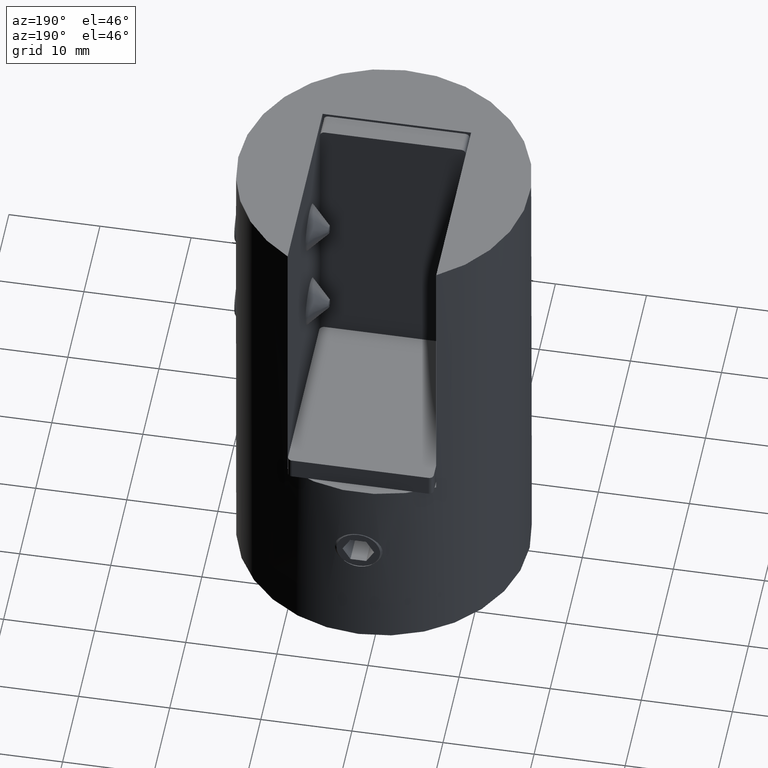
[diagram: clean part render]
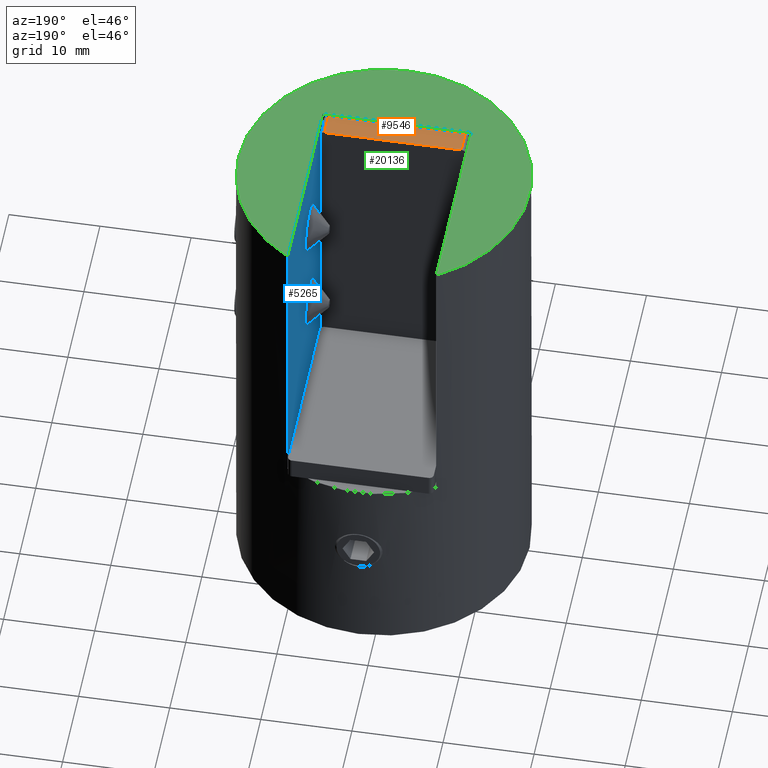
[diagram: same view with three faces highlighted in distinct colors, each labeled with its STEP entity id]
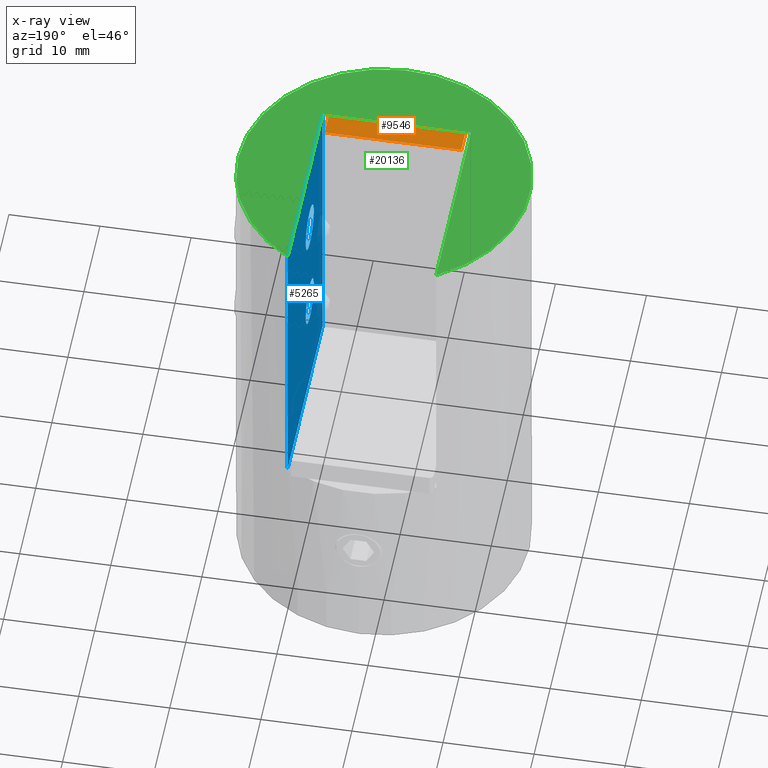
[diagram: x-ray of the same camera — body ghosted, the three highlighted faces saturated]
A machine part, auxiliary view with three faces highlighted in distinct colors.
The next image is the same camera in x-ray (body ghosted, the three faces saturated) — at least one of them is partly hidden behind the body in this view.
Their STEP definitions:

[orange] entity #9546 — the highlighted planar face has unit normal (0, 0, 1).
#1801 = CARTESIAN_POINT ( 'NONE',  ( -16.19999999999999929, 2.450000000000000178, 7.499999999999996447 ) ) ;
#2068 = VERTEX_POINT ( 'NONE', #7767 ) ;
#2683 = ORIENTED_EDGE ( 'NONE', *, *, #7994, .F. ) ;
#2941 = DIRECTION ( 'NONE',  ( -0.000000000000000000, -1.000000000000000000, -0.000000000000000000 ) ) ;
#3038 = LINE ( 'NONE', #17101, #19314 ) ;
#3526 = DIRECTION ( 'NONE',  ( 0.000000000000000000, 0.000000000000000000, -1.000000000000000000 ) ) ;
#3953 = CARTESIAN_POINT ( 'NONE',  ( -16.19999999999999929, 0.000000000000000000, -7.499999999999996447 ) ) ;
#5168 = ORIENTED_EDGE ( 'NONE', *, *, #5782, .T. ) ;
#5500 = LINE ( 'NONE', #12010, #9459 ) ;
#5578 = ORIENTED_EDGE ( 'NONE', *, *, #15117, .T. ) ;
#5782 = EDGE_CURVE ( 'NONE', #13147, #6051, #18416, .T. ) ;
#6051 = VERTEX_POINT ( 'NONE', #3953 ) ;
#6263 = AXIS2_PLACEMENT_3D ( 'NONE', #13954, #20074, #20002 ) ;
#7567 = PLANE ( 'NONE',  #6263 ) ;
#7767 = CARTESIAN_POINT ( 'NONE',  ( -16.19999999999999929, 0.000000000000000000, 7.499999999999996447 ) ) ;
#7994 = EDGE_CURVE ( 'NONE', #8850, #2068, #3038, .T. ) ;
#8025 = LINE ( 'NONE', #1801, #9504 ) ;
#8125 = CARTESIAN_POINT ( 'NONE',  ( -16.19999999999999929, 2.450000000000000178, 7.499999999999996447 ) ) ;
#8764 = CARTESIAN_POINT ( 'NONE',  ( -16.19999999999999929, 2.450000000000000178, -7.499999999999996447 ) ) ;
#8850 = VERTEX_POINT ( 'NONE', #8125 ) ;
#9459 = VECTOR ( 'NONE', #11945, 1000.000000000000000 ) ;
#9504 = VECTOR ( 'NONE', #3526, 1000.000000000000000 ) ;
#9546 = ADVANCED_FACE ( 'NONE', ( #12378 ), #7567, .T. ) ;
#9586 = EDGE_LOOP ( 'NONE', ( #9898, #2683, #5578, #5168 ) ) ;
#9898 = ORIENTED_EDGE ( 'NONE', *, *, #17528, .F. ) ;
#11945 = DIRECTION ( 'NONE',  ( 0.000000000000000000, 0.000000000000000000, -1.000000000000000000 ) ) ;
#12010 = CARTESIAN_POINT ( 'NONE',  ( -16.19999999999999929, 0.000000000000000000, 7.499999999999996447 ) ) ;
#12378 = FACE_OUTER_BOUND ( 'NONE', #9586, .T. ) ;
#12617 = CARTESIAN_POINT ( 'NONE',  ( -16.19999999999999929, 2.450000000000000178, -7.499999999999996447 ) ) ;
#13147 = VERTEX_POINT ( 'NONE', #12617 ) ;
#13713 = VECTOR ( 'NONE', #15169, 1000.000000000000000 ) ;
#13954 = CARTESIAN_POINT ( 'NONE',  ( -16.19999999999999929, 2.450000000000000178, 7.499999999999996447 ) ) ;
#15117 = EDGE_CURVE ( 'NONE', #8850, #13147, #8025, .T. ) ;
#15169 = DIRECTION ( 'NONE',  ( -0.000000000000000000, -1.000000000000000000, -0.000000000000000000 ) ) ;
#17101 = CARTESIAN_POINT ( 'NONE',  ( -16.19999999999999929, 2.450000000000000178, 7.499999999999996447 ) ) ;
#17528 = EDGE_CURVE ( 'NONE', #2068, #6051, #5500, .T. ) ;
#18416 = LINE ( 'NONE', #8764, #13713 ) ;
#19314 = VECTOR ( 'NONE', #2941, 1000.000000000000000 ) ;
#20002 = DIRECTION ( 'NONE',  ( 0.000000000000000000, 0.000000000000000000, 1.000000000000000000 ) ) ;
#20074 = DIRECTION ( 'NONE',  ( -1.000000000000000000, 0.000000000000000000, 0.000000000000000000 ) ) ;

[blue] entity #5265 — the highlighted planar face has unit normal (1, 0, -0).
#23 = ORIENTED_EDGE ( 'NONE', *, *, #13697, .F. ) ;
#1382 = VECTOR ( 'NONE', #18690, 1000.000000000000000 ) ;
#1427 = CARTESIAN_POINT ( 'NONE',  ( 8.150000000000000355, -8.000000000000000000, -33.00000000000000000 ) ) ;
#1485 = CARTESIAN_POINT ( 'NONE',  ( 8.150000000000005684, 0.000000000000000000, -9.500000000000014211 ) ) ;
#1652 = AXIS2_PLACEMENT_3D ( 'NONE', #1485, #17091, #7871 ) ;
#2095 = CARTESIAN_POINT ( 'NONE',  ( 8.150000000000002132, -7.703719777548943412E-31, -18.50000000000002842 ) ) ;
#2819 = AXIS2_PLACEMENT_3D ( 'NONE', #3679, #8548, #19403 ) ;
#3348 = EDGE_LOOP ( 'NONE', ( #23 ) ) ;
#3679 = CARTESIAN_POINT ( 'NONE',  ( 8.150000000000002132, -7.703719777548943412E-31, -21.00000000000001421 ) ) ;
#3826 = ORIENTED_EDGE ( 'NONE', *, *, #4732, .F. ) ;
#4013 = EDGE_CURVE ( 'NONE', #14952, #8044, #8105, .T. ) ;
#4065 = CARTESIAN_POINT ( 'NONE',  ( 8.150000000000000355, -8.000000000000000000, -33.00000000000000000 ) ) ;
#4580 = CIRCLE ( 'NONE', #1652, 2.499999999999988454 ) ;
#4732 = EDGE_CURVE ( 'NONE', #8886, #16869, #14982, .T. ) ;
#4879 = CARTESIAN_POINT ( 'NONE',  ( 8.150000000000011013, -8.000000000000000000, -1.387778780781445676E-14 ) ) ;
#5265 = ADVANCED_FACE ( 'NONE', ( #11737, #7565, #12497 ), #11923, .F. ) ;
#5437 = CARTESIAN_POINT ( 'NONE',  ( 8.150000000000005684, 0.000000000000000000, -7.000000000000024869 ) ) ;
#6008 = DIRECTION ( 'NONE',  ( -0.000000000000000000, -0.000000000000000000, -1.000000000000000000 ) ) ;
#6459 = ORIENTED_EDGE ( 'NONE', *, *, #13523, .F. ) ;
#6716 = EDGE_LOOP ( 'NONE', ( #6459 ) ) ;
#7565 = FACE_BOUND ( 'NONE', #3348, .T. ) ;
#7812 = CIRCLE ( 'NONE', #2819, 2.499999999999988454 ) ;
#7871 = DIRECTION ( 'NONE',  ( 0.000000000000000000, 0.000000000000000000, 1.000000000000000000 ) ) ;
#8044 = VERTEX_POINT ( 'NONE', #18676 ) ;
#8104 = VECTOR ( 'NONE', #9317, 1000.000000000000000 ) ;
#8105 = LINE ( 'NONE', #15453, #12019 ) ;
#8285 = EDGE_CURVE ( 'NONE', #8886, #14952, #20041, .T. ) ;
#8548 = DIRECTION ( 'NONE',  ( -1.000000000000000000, -0.000000000000000000, 3.304235192336775512E-16 ) ) ;
#8886 = VERTEX_POINT ( 'NONE', #4879 ) ;
#9205 = VECTOR ( 'NONE', #16257, 1000.000000000000000 ) ;
#9317 = DIRECTION ( 'NONE',  ( -0.000000000000000000, 1.000000000000000000, -0.000000000000000000 ) ) ;
#9626 = ORIENTED_EDGE ( 'NONE', *, *, #8285, .T. ) ;
#9738 = EDGE_LOOP ( 'NONE', ( #20082, #15212, #3826, #9626 ) ) ;
#11150 = VERTEX_POINT ( 'NONE', #2095 ) ;
#11737 = FACE_BOUND ( 'NONE', #6716, .T. ) ;
#11923 = PLANE ( 'NONE',  #19278 ) ;
#12019 = VECTOR ( 'NONE', #6008, 1000.000000000000000 ) ;
#12266 = LINE ( 'NONE', #1427, #8104 ) ;
#12278 = CARTESIAN_POINT ( 'NONE',  ( 8.150000000000000355, -8.000000000000000000, -33.00000000000000000 ) ) ;
#12497 = FACE_OUTER_BOUND ( 'NONE', #9738, .T. ) ;
#13523 = EDGE_CURVE ( 'NONE', #18791, #18791, #4580, .T. ) ;
#13697 = EDGE_CURVE ( 'NONE', #11150, #11150, #7812, .T. ) ;
#14384 = CARTESIAN_POINT ( 'NONE',  ( 8.150000000000000355, -8.000000000000000000, -33.00000000000000000 ) ) ;
#14952 = VERTEX_POINT ( 'NONE', #19046 ) ;
#14982 = LINE ( 'NONE', #12278, #1382 ) ;
#15107 = DIRECTION ( 'NONE',  ( -3.304235192336775512E-16, 0.000000000000000000, -1.000000000000000000 ) ) ;
#15212 = ORIENTED_EDGE ( 'NONE', *, *, #18739, .F. ) ;
#15453 = CARTESIAN_POINT ( 'NONE',  ( 8.149999999999995026, 13.76871453694933933, -50.00000000000000000 ) ) ;
#16257 = DIRECTION ( 'NONE',  ( -0.000000000000000000, 1.000000000000000000, 0.000000000000000000 ) ) ;
#16869 = VERTEX_POINT ( 'NONE', #14384 ) ;
#17091 = DIRECTION ( 'NONE',  ( -1.000000000000000000, -0.000000000000000000, 3.304235192336775512E-16 ) ) ;
#18273 = DIRECTION ( 'NONE',  ( 1.000000000000000000, 0.000000000000000000, -3.304235192336775512E-16 ) ) ;
#18676 = CARTESIAN_POINT ( 'NONE',  ( 8.150000000000000355, 13.76871453694934111, -33.00000000000000000 ) ) ;
#18690 = DIRECTION ( 'NONE',  ( -3.304235192336775512E-16, -0.000000000000000000, -1.000000000000000000 ) ) ;
#18739 = EDGE_CURVE ( 'NONE', #16869, #8044, #12266, .T. ) ;
#18791 = VERTEX_POINT ( 'NONE', #5437 ) ;
#19046 = CARTESIAN_POINT ( 'NONE',  ( 8.150000000000011013, 13.76871453694933045, 0.000000000000000000 ) ) ;
#19081 = CARTESIAN_POINT ( 'NONE',  ( 8.150000000000011013, 0.000000000000000000, 0.000000000000000000 ) ) ;
#19278 = AXIS2_PLACEMENT_3D ( 'NONE', #4065, #18273, #15107 ) ;
#19403 = DIRECTION ( 'NONE',  ( 0.000000000000000000, 0.000000000000000000, 1.000000000000000000 ) ) ;
#20041 = LINE ( 'NONE', #19081, #9205 ) ;
#20082 = ORIENTED_EDGE ( 'NONE', *, *, #4013, .T. ) ;

[green] entity #20136 — the highlighted planar face has unit normal (0, 0, 1).
#547 = VECTOR ( 'NONE', #13294, 1000.000000000000000 ) ;
#1012 = ORIENTED_EDGE ( 'NONE', *, *, #3760, .F. ) ;
#1370 = DIRECTION ( 'NONE',  ( 0.000000000000000000, 0.000000000000000000, 1.000000000000000000 ) ) ;
#1437 = DIRECTION ( 'NONE',  ( 1.000000000000000000, 0.000000000000000000, 0.000000000000000000 ) ) ;
#1767 = AXIS2_PLACEMENT_3D ( 'NONE', #12000, #3933, #19578 ) ;
#2331 = VERTEX_POINT ( 'NONE', #2550 ) ;
#2550 = CARTESIAN_POINT ( 'NONE',  ( -8.150000000000000355, -8.000000000000000000, 0.000000000000000000 ) ) ;
#2821 = CARTESIAN_POINT ( 'NONE',  ( 0.000000000000000000, 0.000000000000000000, 0.000000000000000000 ) ) ;
#3760 = EDGE_CURVE ( 'NONE', #8667, #2331, #11513, .T. ) ;
#3933 = DIRECTION ( 'NONE',  ( 0.000000000000000000, 0.000000000000000000, 1.000000000000000000 ) ) ;
#4879 = CARTESIAN_POINT ( 'NONE',  ( 8.150000000000011013, -8.000000000000000000, -1.387778780781445676E-14 ) ) ;
#6012 = LINE ( 'NONE', #11702, #547 ) ;
#8285 = EDGE_CURVE ( 'NONE', #8886, #14952, #20041, .T. ) ;
#8667 = VERTEX_POINT ( 'NONE', #13555 ) ;
#8886 = VERTEX_POINT ( 'NONE', #4879 ) ;
#8900 = ORIENTED_EDGE ( 'NONE', *, *, #18978, .F. ) ;
#9205 = VECTOR ( 'NONE', #16257, 1000.000000000000000 ) ;
#10926 = FACE_OUTER_BOUND ( 'NONE', #14726, .T. ) ;
#11513 = LINE ( 'NONE', #17322, #18199 ) ;
#11702 = CARTESIAN_POINT ( 'NONE',  ( 0.000000000000000000, -8.000000000000000000, 0.000000000000000000 ) ) ;
#12000 = CARTESIAN_POINT ( 'NONE',  ( 0.000000000000000000, 0.000000000000000000, 0.000000000000000000 ) ) ;
#12625 = AXIS2_PLACEMENT_3D ( 'NONE', #2821, #1370, #1437 ) ;
#13030 = EDGE_CURVE ( 'NONE', #8667, #14952, #14215, .T. ) ;
#13294 = DIRECTION ( 'NONE',  ( 1.000000000000000000, 0.000000000000000000, 0.000000000000000000 ) ) ;
#13555 = CARTESIAN_POINT ( 'NONE',  ( -8.150000000000000355, 13.76871453694933578, 0.000000000000000000 ) ) ;
#14215 = CIRCLE ( 'NONE', #12625, 16.00000000000000000 ) ;
#14726 = EDGE_LOOP ( 'NONE', ( #1012, #19948, #17215, #8900 ) ) ;
#14952 = VERTEX_POINT ( 'NONE', #19046 ) ;
#16257 = DIRECTION ( 'NONE',  ( -0.000000000000000000, 1.000000000000000000, 0.000000000000000000 ) ) ;
#16492 = PLANE ( 'NONE',  #1767 ) ;
#17215 = ORIENTED_EDGE ( 'NONE', *, *, #8285, .F. ) ;
#17322 = CARTESIAN_POINT ( 'NONE',  ( -8.150000000000000355, 0.000000000000000000, 0.000000000000000000 ) ) ;
#18199 = VECTOR ( 'NONE', #20343, 1000.000000000000000 ) ;
#18978 = EDGE_CURVE ( 'NONE', #2331, #8886, #6012, .T. ) ;
#19046 = CARTESIAN_POINT ( 'NONE',  ( 8.150000000000011013, 13.76871453694933045, 0.000000000000000000 ) ) ;
#19081 = CARTESIAN_POINT ( 'NONE',  ( 8.150000000000011013, 0.000000000000000000, 0.000000000000000000 ) ) ;
#19578 = DIRECTION ( 'NONE',  ( 1.000000000000000000, 0.000000000000000000, -0.000000000000000000 ) ) ;
#19948 = ORIENTED_EDGE ( 'NONE', *, *, #13030, .T. ) ;
#20041 = LINE ( 'NONE', #19081, #9205 ) ;
#20136 = ADVANCED_FACE ( 'NONE', ( #10926 ), #16492, .T. ) ;
#20343 = DIRECTION ( 'NONE',  ( 0.000000000000000000, -1.000000000000000000, 0.000000000000000000 ) ) ;